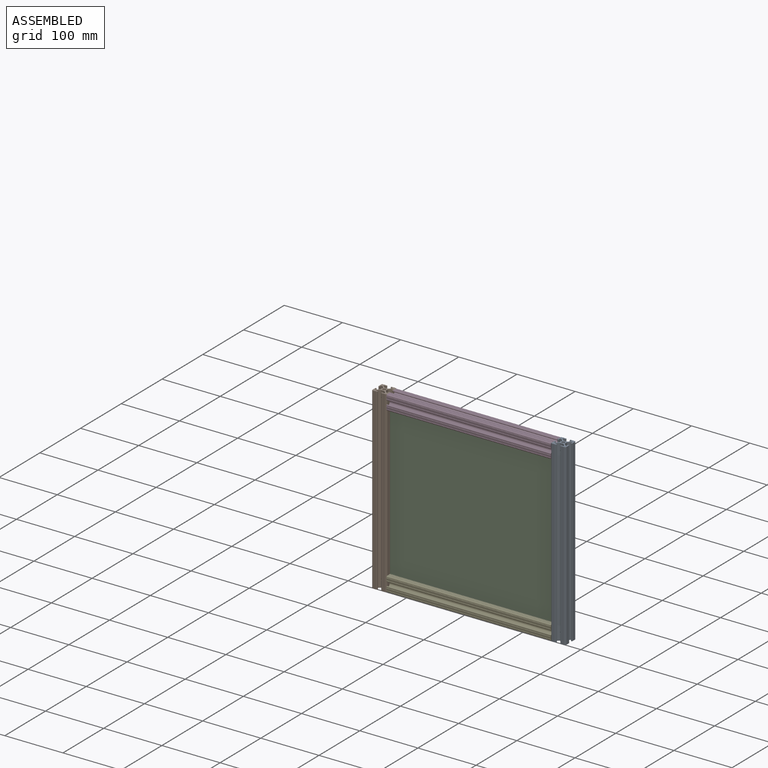
[diagram: assembled view]
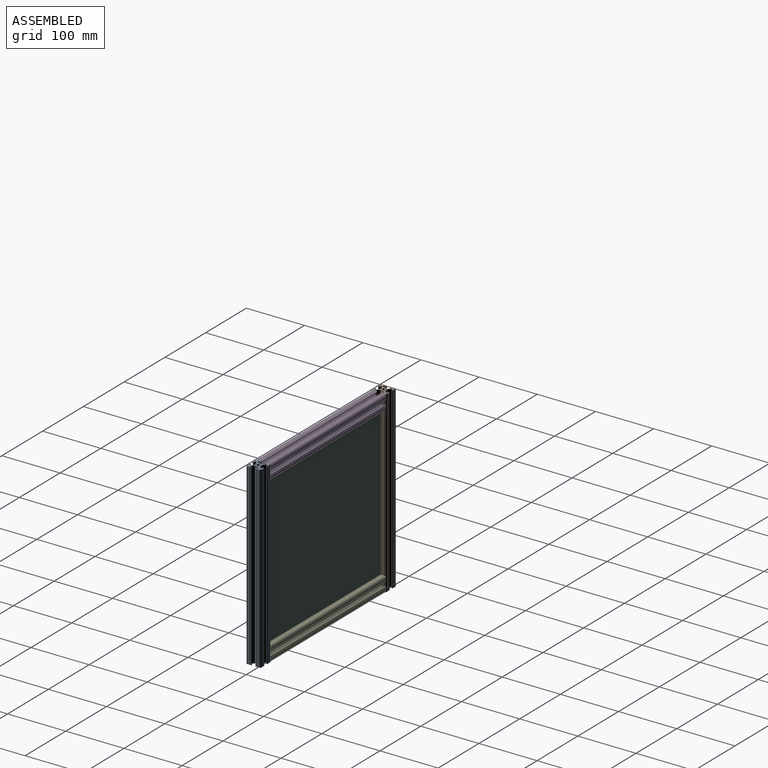
[diagram: assembled view, second angle]
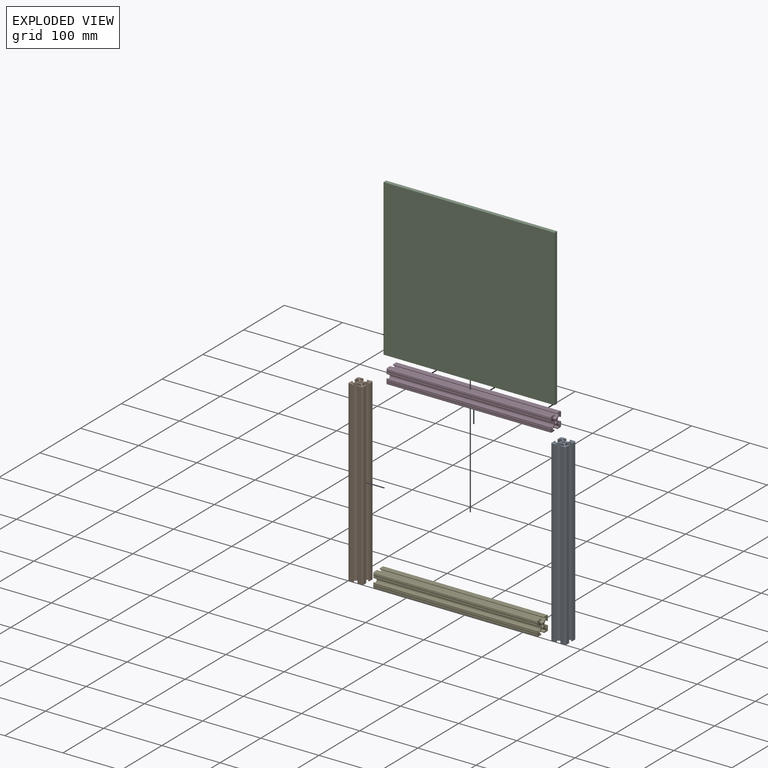
[diagram: exploded view]
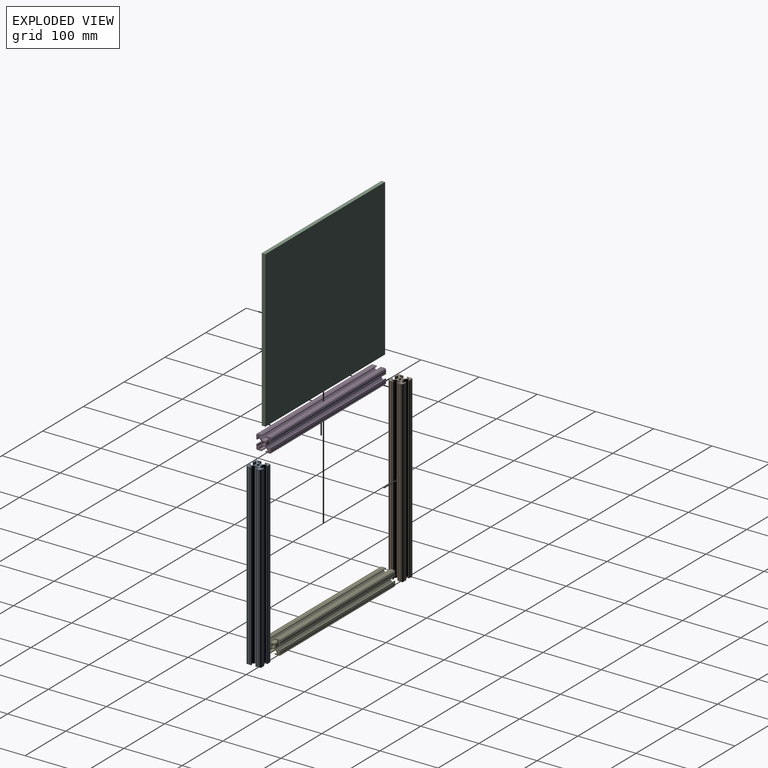
[diagram: exploded view, second angle]
ASSEMBLY  parts=5 mates=4
PART A: 121 faces, bbox 25.4x307.3x25.4 mm
  f0: cylinder r=3.17mm len=307.34mm, axis (0,1,0), area 761.2mm2, adj f7,f12,f21,f67,f68,f112,f117,f120
  f1: cylinder r=3.17mm len=307.34mm, axis (0,1,0), area 761.2mm2, adj f7,f12,f21,f68,f69,f112,f117,f120
  f2: cylinder r=2.6mm len=11.01mm, axis (0,1,0), area 180.1mm2, adj f8,f9,f112,f119,f120
  f3: cylinder r=2.6mm len=278.09mm, axis (0,1,0), area 4529.4mm2, adj f8,f9,f13,f14,f117,f118,f119,f120
  f4: cylinder r=3.17mm len=307.34mm, axis (0,1,0), area 761.5mm2, adj f5,f11,f21,f22,f111,f112,f118,f119
  f5: plane 10.88x3.42mm, normal (0,0,-1), area 35.6mm2, adj f4,f6,f112,f119
  f6: cylinder r=3.17mm len=307.34mm, axis (0,1,0), area 761.5mm2, adj f5,f11,f21,f22,f23,f112,f118,f119
  f7: plane 278.2x3.32mm, normal (0,0,1), area 919.3mm2, adj f0,f1,f117,f120
  f8: cylinder r=2.5mm len=5mm, axis (1,0,0), area 34.5mm2, adj f2,f3,f18,f45,f115,f116,f119,f120
  f9: cylinder r=2.5mm len=5mm, axis (1,0,0), area 34.5mm2, adj f2,f3,f15,f16,f17,f20,f119,f120
  f10: cylinder r=2.6mm len=11.68mm, axis (0,1,0), area 180.1mm2, adj f13,f14,f21,f117,f118
  f11: plane 278.29x3.42mm, normal (0,0,-1), area 948.2mm2, adj f4,f6,f118,f119
  f12: plane 10.83x3.32mm, normal (0,0,1), area 34.5mm2, adj f0,f1,f21,f117
  f13: cylinder r=2.5mm len=5mm, axis (1,0,0), area 36.2mm2, adj f3,f10,f18,f19,f113,f114,f117,f118
  f14: cylinder r=2.5mm len=5mm, axis (1,0,0), area 36.3mm2, adj f3,f10,f15,f17,f20,f90,f117,f118
  f15: cylinder r=3.17mm len=307.34mm, axis (0,1,0), area 762.4mm2, adj f9,f14,f16,f20,f21,f89,f90,f112
  f16: plane 10.77x3.18mm, normal (-1,0,0), area 33mm2, adj f9,f15,f17,f112
  f17: cylinder r=3.17mm len=307.34mm, axis (0,1,0), area 762.4mm2, adj f9,f14,f16,f20,f21,f90,f91,f112
  f18: plane 276.94x3.18mm, normal (1,0,0), area 879.1mm2, adj f8,f13,f44,f46
  f19: plane 11.91x3.18mm, normal (1,0,0), area 36.7mm2, adj f13,f21,f44,f46
  f20: plane 276.94x3.18mm, normal (-1,0,0), area 879.1mm2, adj f9,f14,f15,f17
  f21: plane 25.4x25.4mm, normal (0,1,0), area 280.1mm2, adj f0,f1,f4,f6,f10,f12,f15,f17
  f22: plane 10.88x3.42mm, normal (0,0,-1), area 35.6mm2, adj f4,f6,f21,f118
  f23: plane 307.34x3.23mm, normal (-0.71,0,-0.71), area 1401.5mm2, adj f6,f21,f24,f112
  f24: cylinder r=1.08mm len=307.34mm, axis (0,1,0), area 782.7mm2, adj f21,f23,f25,f112
  f25: plane 307.34x2.13mm, normal (0,0,1), area 654.3mm2, adj f21,f24,f26,f112
  f26: cylinder r=1.05mm len=307.34mm, axis (0,1,0), area 506.4mm2, adj f21,f25,f27,f112
  f27: plane 307.34x0.11mm, normal (-1,0,0), area 34.3mm2, adj f21,f26,f28,f112
  f28: cylinder r=1.05mm len=307.34mm, axis (0,1,0), area 506.4mm2, adj f21,f27,f29,f112
  f29: plane 307.34x1.03mm, normal (0,0,-1), area 316.4mm2, adj f21,f28,f30,f112
  f30: cylinder r=0.51mm len=307.34mm, axis (0,1,0), area 490.5mm2, adj f21,f29,f31,f112
  f31: plane 307.34x3.22mm, normal (0,0,-1), area 988.8mm2, adj f21,f30,f32,f112
  f32: cylinder r=0.51mm len=307.34mm, axis (0,1,0), area 490.4mm2, adj f21,f31,f33,f112
  f33: cylinder r=2.11mm len=307.34mm, axis (0,1,0), area 1033.4mm2, adj f21,f32,f34,f112
  f34: cylinder r=0.51mm len=307.34mm, axis (0,1,0), area 490.4mm2, adj f21,f33,f35,f112
  f35: plane 307.34x3.22mm, normal (1,0,0), area 988.8mm2, adj f21,f34,f36,f112
  f36: cylinder r=0.51mm len=307.34mm, axis (0,1,0), area 490.5mm2, adj f21,f35,f37,f112
  f37: plane 307.34x1.03mm, normal (1,0,0), area 316.4mm2, adj f21,f36,f38,f112
  f38: cylinder r=1.05mm len=307.34mm, axis (0,1,0), area 506.4mm2, adj f21,f37,f39,f112
  f39: plane 307.34x0.11mm, normal (0,0,1), area 34.3mm2, adj f21,f38,f40,f112
  f40: cylinder r=1.05mm len=307.34mm, axis (0,1,0), area 506.4mm2, adj f21,f39,f41,f112
  f41: plane 307.34x2.11mm, normal (-1,0,0), area 649.9mm2, adj f21,f40,f42,f112
  f42: cylinder r=1.03mm len=307.34mm, axis (0,1,0), area 743.7mm2, adj f21,f41,f43,f112
  f43: plane 307.34x3.3mm, normal (0.71,0,0.71), area 1431.5mm2, adj f21,f42,f44,f112
  f44: cylinder r=3.17mm len=307.34mm, axis (0,1,0), area 767.3mm2, adj f18,f19,f21,f43,f45,f112,f113,f115
  f45: plane 10.77x3.18mm, normal (1,0,0), area 33mm2, adj f8,f44,f46,f112
  f46: cylinder r=3.17mm len=307.34mm, axis (0,1,0), area 767.3mm2, adj f18,f19,f21,f45,f47,f112,f114,f116
  f47: plane 307.34x3.3mm, normal (0.71,0,-0.71), area 1431.5mm2, adj f21,f46,f48,f112
  f48: cylinder r=1.03mm len=307.34mm, axis (0,1,0), area 743.7mm2, adj f21,f47,f49,f112
  f49: plane 307.34x2.11mm, normal (-1,0,0), area 649.9mm2, adj f21,f48,f50,f112
  f50: cylinder r=1.05mm len=307.34mm, axis (0,1,0), area 506.4mm2, adj f21,f49,f51,f112
  f51: plane 307.34x0.11mm, normal (0,0,-1), area 34.3mm2, adj f21,f50,f52,f112
  f52: cylinder r=1.05mm len=307.34mm, axis (0,1,0), area 506.4mm2, adj f21,f51,f53,f112
  f53: plane 307.34x1.03mm, normal (1,0,0), area 316.5mm2, adj f21,f52,f54,f112
  f54: cylinder r=0.51mm len=307.34mm, axis (0,1,0), area 490.5mm2, adj f21,f53,f55,f112
  f55: plane 307.34x3.22mm, normal (1,0,0), area 988.8mm2, adj f21,f54,f56,f112
  f56: cylinder r=0.51mm len=307.34mm, axis (0,1,0), area 490.4mm2, adj f21,f55,f57,f112
  f57: cylinder r=2.11mm len=307.34mm, axis (0,1,0), area 1033.4mm2, adj f21,f56,f58,f112
  f58: cylinder r=0.51mm len=307.34mm, axis (0,1,0), area 490.4mm2, adj f21,f57,f59,f112
  f59: plane 307.34x3.22mm, normal (0,0,1), area 988.8mm2, adj f21,f58,f60,f112
  f60: cylinder r=0.51mm len=307.34mm, axis (0,1,0), area 490.5mm2, adj f21,f59,f61,f112
  f61: plane 307.34x1.03mm, normal (0,0,1), area 316.4mm2, adj f21,f60,f62,f112
  f62: cylinder r=1.05mm len=307.34mm, axis (0,1,0), area 506.4mm2, adj f21,f61,f63,f112
  f63: plane 307.34x0.11mm, normal (-1,0,0), area 34.3mm2, adj f21,f62,f64,f112
  f64: cylinder r=1.05mm len=307.34mm, axis (0,1,0), area 506.4mm2, adj f21,f63,f65,f112
  f65: plane 307.34x2.19mm, normal (0,0,-1), area 672.9mm2, adj f21,f64,f66,f112
  f66: cylinder r=1.03mm len=307.34mm, axis (0,1,0), area 749mm2, adj f21,f65,f67,f112
  f67: plane 307.34x3.31mm, normal (-0.71,0,0.71), area 1436mm2, adj f0,f21,f66,f112
  f68: plane 10.83x3.32mm, normal (0,0,1), area 34.5mm2, adj f0,f1,f112,f120
  f69: plane 307.34x3.31mm, normal (0.71,0,0.71), area 1436mm2, adj f1,f21,f70,f112
  f70: cylinder r=1.03mm len=307.34mm, axis (0,1,0), area 749mm2, adj f21,f69,f71,f112
  f71: plane 307.34x2.19mm, normal (0,0,-1), area 672.9mm2, adj f21,f70,f72,f112
  f72: cylinder r=1.05mm len=307.34mm, axis (0,1,0), area 506.4mm2, adj f21,f71,f73,f112
  f73: plane 307.34x0.11mm, normal (1,0,0), area 34.3mm2, adj f21,f72,f74,f112
  f74: cylinder r=1.05mm len=307.34mm, axis (0,1,0), area 506.4mm2, adj f21,f73,f75,f112
  f75: plane 307.34x1.03mm, normal (0,0,1), area 316.4mm2, adj f21,f74,f76,f112
  f76: cylinder r=0.51mm len=307.34mm, axis (0,1,0), area 490.5mm2, adj f21,f75,f77,f112
  f77: plane 307.34x3.22mm, normal (0,0,1), area 988.8mm2, adj f21,f76,f78,f112
  f78: cylinder r=0.51mm len=307.34mm, axis (0,1,0), area 490.4mm2, adj f21,f77,f79,f112
  f79: cylinder r=2.11mm len=307.34mm, axis (0,1,0), area 1033.4mm2, adj f21,f78,f80,f112
  f80: cylinder r=0.51mm len=307.34mm, axis (0,1,0), area 490.4mm2, adj f21,f79,f81,f112
  f81: plane 307.34x3.22mm, normal (-1,0,0), area 988.8mm2, adj f21,f80,f82,f112
  f82: cylinder r=0.51mm len=307.34mm, axis (0,1,0), area 490.5mm2, adj f21,f81,f83,f112
  f83: plane 307.34x1.03mm, normal (-1,0,0), area 316.5mm2, adj f21,f82,f84,f112
  f84: cylinder r=1.05mm len=307.34mm, axis (0,1,0), area 506.4mm2, adj f21,f83,f85,f112
  f85: plane 307.34x0.11mm, normal (0,0,-1), area 34.3mm2, adj f21,f84,f86,f112
  f86: cylinder r=1.05mm len=307.34mm, axis (0,1,0), area 506.4mm2, adj f21,f85,f87,f112
  f87: plane 307.34x2.11mm, normal (1,0,0), area 649.9mm2, adj f21,f86,f88,f112
  f88: cylinder r=1.03mm len=307.34mm, axis (0,1,0), area 743.7mm2, adj f21,f87,f89,f112
  f89: plane 307.34x3.3mm, normal (-0.71,0,-0.71), area 1431.5mm2, adj f15,f21,f88,f112
  f90: plane 11.91x3.18mm, normal (-1,0,0), area 36.7mm2, adj f14,f15,f17,f21
  f91: plane 307.34x3.3mm, normal (-0.71,0,0.71), area 1431.5mm2, adj f17,f21,f92,f112
  f92: cylinder r=1.03mm len=307.34mm, axis (0,1,0), area 743.7mm2, adj f21,f91,f93,f112
  f93: plane 307.34x2.11mm, normal (1,0,0), area 649.9mm2, adj f21,f92,f94,f112
  f94: cylinder r=1.05mm len=307.34mm, axis (0,1,0), area 506.4mm2, adj f21,f93,f95,f112
  f95: plane 307.34x0.11mm, normal (0,0,1), area 34.3mm2, adj f21,f94,f96,f112
  f96: cylinder r=1.05mm len=307.34mm, axis (0,1,0), area 506.4mm2, adj f21,f95,f97,f112
  f97: plane 307.34x1.03mm, normal (-1,0,0), area 316.4mm2, adj f21,f96,f98,f112
  f98: cylinder r=0.51mm len=307.34mm, axis (0,1,0), area 490.5mm2, adj f21,f97,f99,f112
  f99: plane 307.34x3.22mm, normal (-1,0,0), area 988.8mm2, adj f21,f98,f100,f112
  f100: cylinder r=0.51mm len=307.34mm, axis (0,1,0), area 490.4mm2, adj f21,f99,f101,f112
  f101: cylinder r=2.11mm len=307.34mm, axis (0,1,0), area 1033.4mm2, adj f21,f100,f102,f112
  f102: cylinder r=0.51mm len=307.34mm, axis (0,1,0), area 490.4mm2, adj f21,f101,f103,f112
  f103: plane 307.34x3.22mm, normal (0,0,-1), area 988.8mm2, adj f21,f102,f104,f112
  f104: cylinder r=0.51mm len=307.34mm, axis (0,1,0), area 490.5mm2, adj f21,f103,f105,f112
  f105: plane 307.34x1.03mm, normal (0,0,-1), area 316.4mm2, adj f21,f104,f106,f112
  f106: cylinder r=1.05mm len=307.34mm, axis (0,1,0), area 506.4mm2, adj f21,f105,f107,f112
  f107: plane 307.34x0.11mm, normal (1,0,0), area 34.3mm2, adj f21,f106,f108,f112
  f108: cylinder r=1.05mm len=307.34mm, axis (0,1,0), area 506.4mm2, adj f21,f107,f109,f112
  f109: plane 307.34x2.13mm, normal (0,0,1), area 654.3mm2, adj f21,f108,f110,f112
  f110: cylinder r=1.08mm len=307.34mm, axis (0,1,0), area 782.7mm2, adj f21,f109,f111,f112
  f111: plane 307.34x3.23mm, normal (0.71,0,-0.71), area 1401.5mm2, adj f4,f21,f110,f112
  f112: plane 25.4x25.4mm, normal (0,-1,0), area 280.1mm2, adj f0,f1,f2,f4,f5,f6,f15,f16
  f113: plane 3.86x0.91mm, normal (-1,0,0), area 2.4mm2, adj f13,f44
  f114: plane 3.86x0.91mm, normal (-1,0,0), area 2.4mm2, adj f13,f46
  f115: plane 3.86x0.91mm, normal (-1,0,0), area 2.4mm2, adj f8,f44
  f116: plane 3.86x0.91mm, normal (-1,0,0), area 2.4mm2, adj f8,f46
  f117: cylinder r=2.5mm len=5mm, axis (0,0,1), area 35.4mm2, adj f0,f1,f3,f7,f10,f12,f13,f14
  f118: cylinder r=2.5mm len=5mm, axis (0,0,1), area 36.1mm2, adj f3,f4,f6,f10,f11,f13,f14,f22
  f119: cylinder r=2.5mm len=5mm, axis (0,0,1), area 34.8mm2, adj f2,f3,f4,f5,f6,f8,f9,f11
  f120: cylinder r=2.5mm len=5mm, axis (0,0,1), area 34.3mm2, adj f0,f1,f2,f3,f7,f8,f9,f68
PART B: same geometry as A
PART C: 6 faces, bbox 294x6.4x268 mm
  f0: plane 268x6.35mm, normal (-1,0,0), area 1701.8mm2, adj f1,f3,f4,f5
  f1: plane 294x6.35mm, normal (0,0,-1), area 1866.9mm2, adj f0,f2,f4,f5
  f2: plane 268x6.35mm, normal (1,0,0), area 1701.8mm2, adj f1,f3,f4,f5
  f3: plane 294x6.35mm, normal (0,0,1), area 1866.9mm2, adj f0,f2,f4,f5
  f4: plane 294x268mm, normal (0,-1,0), area 78792mm2, adj f0,f1,f2,f3
  f5: plane 294x268mm, normal (0,1,0), area 78792mm2, adj f0,f1,f2,f3
PART D: 99 faces, bbox 25.4x282.3x25.4 mm
  f0: plane 25.4x25.4mm, normal (0,1,0), area 280.1mm2, adj f1,f2,f3,f4,f5,f6,f7,f8
  f1: cylinder r=3.17mm len=282.34mm, axis (0,1,0), area 703.2mm2, adj f0,f2,f96,f98
  f2: plane 282.34x3.42mm, normal (0,0,-1), area 965.2mm2, adj f0,f1,f3,f98
  f3: cylinder r=3.17mm len=282.34mm, axis (0,1,0), area 703.2mm2, adj f0,f2,f4,f98
  f4: plane 282.34x3.23mm, normal (-0.71,0,-0.71), area 1287.5mm2, adj f0,f3,f5,f98
  f5: cylinder r=1.08mm len=282.34mm, axis (0,1,0), area 719mm2, adj f0,f4,f6,f98
  f6: plane 282.34x2.13mm, normal (0,0,1), area 601.1mm2, adj f0,f5,f7,f98
  f7: cylinder r=1.05mm len=282.34mm, axis (0,1,0), area 465.2mm2, adj f0,f6,f8,f98
  f8: plane 282.34x0.11mm, normal (-1,0,0), area 31.6mm2, adj f0,f7,f9,f98
  f9: cylinder r=1.05mm len=282.34mm, axis (0,1,0), area 465.2mm2, adj f0,f8,f10,f98
  f10: plane 282.34x1.03mm, normal (0,0,-1), area 290.7mm2, adj f0,f9,f11,f98
  f11: cylinder r=0.51mm len=282.34mm, axis (0,1,0), area 450.6mm2, adj f0,f10,f12,f98
  f12: plane 282.34x3.22mm, normal (0,0,-1), area 908.4mm2, adj f0,f11,f13,f98
  f13: cylinder r=0.51mm len=282.34mm, axis (0,1,0), area 450.6mm2, adj f0,f12,f14,f98
  f14: cylinder r=2.11mm len=282.34mm, axis (0,1,0), area 949.3mm2, adj f0,f13,f15,f98
  f15: cylinder r=0.51mm len=282.34mm, axis (0,1,0), area 450.6mm2, adj f0,f14,f16,f98
  f16: plane 282.34x3.22mm, normal (1,0,0), area 908.4mm2, adj f0,f15,f17,f98
  f17: cylinder r=0.51mm len=282.34mm, axis (0,1,0), area 450.6mm2, adj f0,f16,f18,f98
  f18: plane 282.34x1.03mm, normal (1,0,0), area 290.7mm2, adj f0,f17,f19,f98
  f19: cylinder r=1.05mm len=282.34mm, axis (0,1,0), area 465.2mm2, adj f0,f18,f20,f98
  f20: plane 282.34x0.11mm, normal (0,0,1), area 31.6mm2, adj f0,f19,f21,f98
  f21: cylinder r=1.05mm len=282.34mm, axis (0,1,0), area 465.2mm2, adj f0,f20,f22,f98
  f22: plane 282.34x2.11mm, normal (-1,0,0), area 597mm2, adj f0,f21,f23,f98
  f23: cylinder r=1.03mm len=282.34mm, axis (0,1,0), area 683.2mm2, adj f0,f22,f24,f98
  f24: plane 282.34x3.3mm, normal (0.71,0,0.71), area 1315mm2, adj f0,f23,f25,f98
  f25: cylinder r=3.17mm len=282.34mm, axis (0,1,0), area 704.9mm2, adj f0,f24,f26,f98
  f26: plane 282.34x3.18mm, normal (1,0,0), area 898.8mm2, adj f0,f25,f27,f98
  f27: cylinder r=3.17mm len=282.34mm, axis (0,1,0), area 704.9mm2, adj f0,f26,f28,f98
  f28: plane 282.34x3.3mm, normal (0.71,0,-0.71), area 1315mm2, adj f0,f27,f29,f98
  f29: cylinder r=1.03mm len=282.34mm, axis (0,1,0), area 683.2mm2, adj f0,f28,f30,f98
  f30: plane 282.34x2.11mm, normal (-1,0,0), area 597mm2, adj f0,f29,f31,f98
  f31: cylinder r=1.05mm len=282.34mm, axis (0,1,0), area 465.2mm2, adj f0,f30,f32,f98
  f32: plane 282.34x0.11mm, normal (0,0,-1), area 31.6mm2, adj f0,f31,f33,f98
  f33: cylinder r=1.05mm len=282.34mm, axis (0,1,0), area 465.2mm2, adj f0,f32,f34,f98
  f34: plane 282.34x1.03mm, normal (1,0,0), area 290.7mm2, adj f0,f33,f35,f98
  f35: cylinder r=0.51mm len=282.34mm, axis (0,1,0), area 450.6mm2, adj f0,f34,f36,f98
  f36: plane 282.34x3.22mm, normal (1,0,0), area 908.4mm2, adj f0,f35,f37,f98
  f37: cylinder r=0.51mm len=282.34mm, axis (0,1,0), area 450.6mm2, adj f0,f36,f38,f98
  f38: cylinder r=2.11mm len=282.34mm, axis (0,1,0), area 949.3mm2, adj f0,f37,f39,f98
  f39: cylinder r=0.51mm len=282.34mm, axis (0,1,0), area 450.6mm2, adj f0,f38,f40,f98
  f40: plane 282.34x3.22mm, normal (0,0,1), area 908.4mm2, adj f0,f39,f41,f98
  f41: cylinder r=0.51mm len=282.34mm, axis (0,1,0), area 450.6mm2, adj f0,f40,f42,f98
  f42: plane 282.34x1.03mm, normal (0,0,1), area 290.7mm2, adj f0,f41,f43,f98
  f43: cylinder r=1.05mm len=282.34mm, axis (0,1,0), area 465.2mm2, adj f0,f42,f44,f98
  f44: plane 282.34x0.11mm, normal (-1,0,0), area 31.6mm2, adj f0,f43,f45,f98
  f45: cylinder r=1.05mm len=282.34mm, axis (0,1,0), area 465.2mm2, adj f0,f44,f46,f98
  f46: plane 282.34x2.19mm, normal (0,0,-1), area 618.1mm2, adj f0,f45,f47,f98
  f47: cylinder r=1.03mm len=282.34mm, axis (0,1,0), area 688.1mm2, adj f0,f46,f48,f98
  f48: plane 282.34x3.31mm, normal (-0.71,0,0.71), area 1319.2mm2, adj f0,f47,f49,f98
  f49: cylinder r=3.17mm len=282.34mm, axis (0,1,0), area 703.2mm2, adj f0,f48,f50,f98
  f50: plane 282.34x3.31mm, normal (0,0,1), area 935.8mm2, adj f0,f49,f51,f98
  f51: cylinder r=3.17mm len=282.34mm, axis (0,1,0), area 703.2mm2, adj f0,f50,f52,f98
  f52: plane 282.34x3.31mm, normal (0.71,0,0.71), area 1319.2mm2, adj f0,f51,f53,f98
  f53: cylinder r=1.03mm len=282.34mm, axis (0,1,0), area 688.1mm2, adj f0,f52,f54,f98
  f54: plane 282.34x2.19mm, normal (0,0,-1), area 618.1mm2, adj f0,f53,f55,f98
  f55: cylinder r=1.05mm len=282.34mm, axis (0,1,0), area 465.2mm2, adj f0,f54,f56,f98
  f56: plane 282.34x0.11mm, normal (1,0,0), area 31.6mm2, adj f0,f55,f57,f98
  f57: cylinder r=1.05mm len=282.34mm, axis (0,1,0), area 465.2mm2, adj f0,f56,f58,f98
  f58: plane 282.34x1.03mm, normal (0,0,1), area 290.7mm2, adj f0,f57,f59,f98
  f59: cylinder r=0.51mm len=282.34mm, axis (0,1,0), area 450.6mm2, adj f0,f58,f60,f98
  f60: plane 282.34x3.22mm, normal (0,0,1), area 908.4mm2, adj f0,f59,f61,f98
  f61: cylinder r=0.51mm len=282.34mm, axis (0,1,0), area 450.6mm2, adj f0,f60,f62,f98
  f62: cylinder r=2.11mm len=282.34mm, axis (0,1,0), area 949.3mm2, adj f0,f61,f63,f98
  f63: cylinder r=0.51mm len=282.34mm, axis (0,1,0), area 450.6mm2, adj f0,f62,f64,f98
  f64: plane 282.34x3.22mm, normal (-1,0,0), area 908.4mm2, adj f0,f63,f65,f98
  f65: cylinder r=0.51mm len=282.34mm, axis (0,1,0), area 450.6mm2, adj f0,f64,f66,f98
  f66: plane 282.34x1.03mm, normal (-1,0,0), area 290.7mm2, adj f0,f65,f67,f98
  f67: cylinder r=1.05mm len=282.34mm, axis (0,1,0), area 465.2mm2, adj f0,f66,f68,f98
  f68: plane 282.34x0.11mm, normal (0,0,-1), area 31.6mm2, adj f0,f67,f69,f98
  f69: cylinder r=1.05mm len=282.34mm, axis (0,1,0), area 465.2mm2, adj f0,f68,f70,f98
  f70: plane 282.34x2.11mm, normal (1,0,0), area 597mm2, adj f0,f69,f71,f98
  f71: cylinder r=1.03mm len=282.34mm, axis (0,1,0), area 683.2mm2, adj f0,f70,f72,f98
  f72: plane 282.34x3.3mm, normal (-0.71,0,-0.71), area 1315mm2, adj f0,f71,f73,f98
  f73: cylinder r=3.17mm len=282.34mm, axis (0,1,0), area 704.9mm2, adj f0,f72,f74,f98
  f74: plane 282.34x3.18mm, normal (-1,0,0), area 898.8mm2, adj f0,f73,f75,f98
  f75: cylinder r=3.17mm len=282.34mm, axis (0,1,0), area 704.9mm2, adj f0,f74,f76,f98
  f76: plane 282.34x3.3mm, normal (-0.71,0,0.71), area 1315mm2, adj f0,f75,f77,f98
  f77: cylinder r=1.03mm len=282.34mm, axis (0,1,0), area 683.2mm2, adj f0,f76,f78,f98
  f78: plane 282.34x2.11mm, normal (1,0,0), area 597mm2, adj f0,f77,f79,f98
  f79: cylinder r=1.05mm len=282.34mm, axis (0,1,0), area 465.2mm2, adj f0,f78,f80,f98
  f80: plane 282.34x0.11mm, normal (0,0,1), area 31.6mm2, adj f0,f79,f81,f98
  f81: cylinder r=1.05mm len=282.34mm, axis (0,1,0), area 465.2mm2, adj f0,f80,f82,f98
  f82: plane 282.34x1.03mm, normal (-1,0,0), area 290.7mm2, adj f0,f81,f83,f98
  f83: cylinder r=0.51mm len=282.34mm, axis (0,1,0), area 450.6mm2, adj f0,f82,f84,f98
  f84: plane 282.34x3.22mm, normal (-1,0,0), area 908.4mm2, adj f0,f83,f85,f98
  f85: cylinder r=0.51mm len=282.34mm, axis (0,1,0), area 450.6mm2, adj f0,f84,f86,f98
  f86: cylinder r=2.11mm len=282.34mm, axis (0,1,0), area 949.3mm2, adj f0,f85,f87,f98
  f87: cylinder r=0.51mm len=282.34mm, axis (0,1,0), area 450.6mm2, adj f0,f86,f88,f98
  f88: plane 282.34x3.22mm, normal (0,0,-1), area 908.4mm2, adj f0,f87,f89,f98
  f89: cylinder r=0.51mm len=282.34mm, axis (0,1,0), area 450.6mm2, adj f0,f88,f90,f98
  f90: plane 282.34x1.03mm, normal (0,0,-1), area 290.7mm2, adj f0,f89,f91,f98
  f91: cylinder r=1.05mm len=282.34mm, axis (0,1,0), area 465.2mm2, adj f0,f90,f92,f98
  f92: plane 282.34x0.11mm, normal (1,0,0), area 31.6mm2, adj f0,f91,f93,f98
  f93: cylinder r=1.05mm len=282.34mm, axis (0,1,0), area 465.2mm2, adj f0,f92,f94,f98
  f94: plane 282.34x2.13mm, normal (0,0,1), area 601.1mm2, adj f0,f93,f95,f98
  f95: cylinder r=1.08mm len=282.34mm, axis (0,1,0), area 719mm2, adj f0,f94,f96,f98
  f96: plane 282.34x3.23mm, normal (0.71,0,-0.71), area 1287.5mm2, adj f0,f1,f95,f98
  f97: cylinder r=2.6mm len=282.34mm, axis (0,1,0), area 4618.6mm2, adj f0,f98
  f98: plane 25.4x25.4mm, normal (0,-1,0), area 280.1mm2, adj f1,f2,f3,f4,f5,f6,f7,f8
PART E: same geometry as D
PLACE A rot(axis=(-1,0,0),90deg) t=(-430.11,-700,-301.79)mm
PLACE B rot(axis=(-1,0,0),90deg) t=(-737.85,-700.02,-301.79)mm
PLACE C rot(axis=(-1,0,0),180deg) t=(-589.19,-703.34,-152.06)mm
PLACE D rot(axis=(-0.58,0.58,0.58),120deg) t=(-725.25,-699.95,-7.15)mm fixed
PLACE E rot(axis=(-0.71,0.71,0),180deg) t=(-725.15,-700.02,-289.09)mm
MATE fastened C.f1 <-> D.f26  axis (0,0,1) through (-442.91,-700.16,-11.66)mm
MATE fastened E.f98 <-> A.f81  axis (1,0,0) through (-442.81,-689.45,-301.79)mm
MATE fastened D.f64 <-> A.f112  axis (0,0,1) through (-442.91,-692.01,5.55)mm
MATE fastened B.f55 <-> E.f0  axis (1,0,0) through (-725.15,-692.08,-301.79)mm
